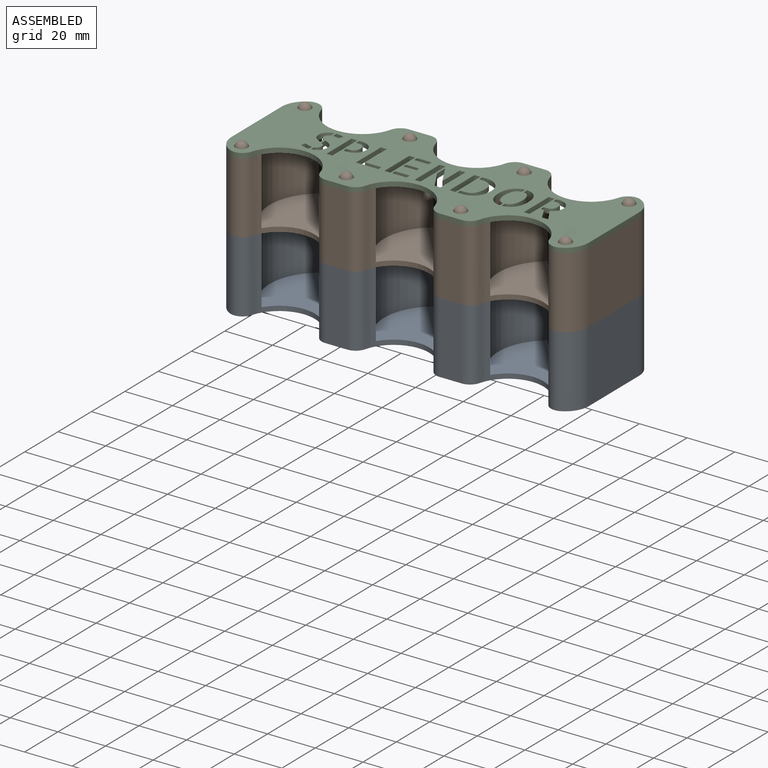
[diagram: assembled view]
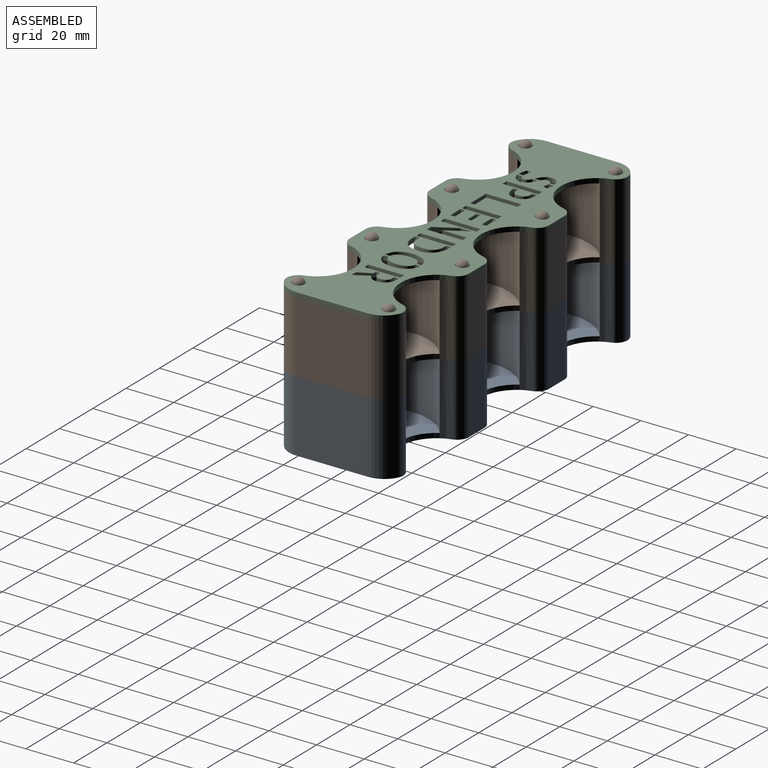
[diagram: assembled view, second angle]
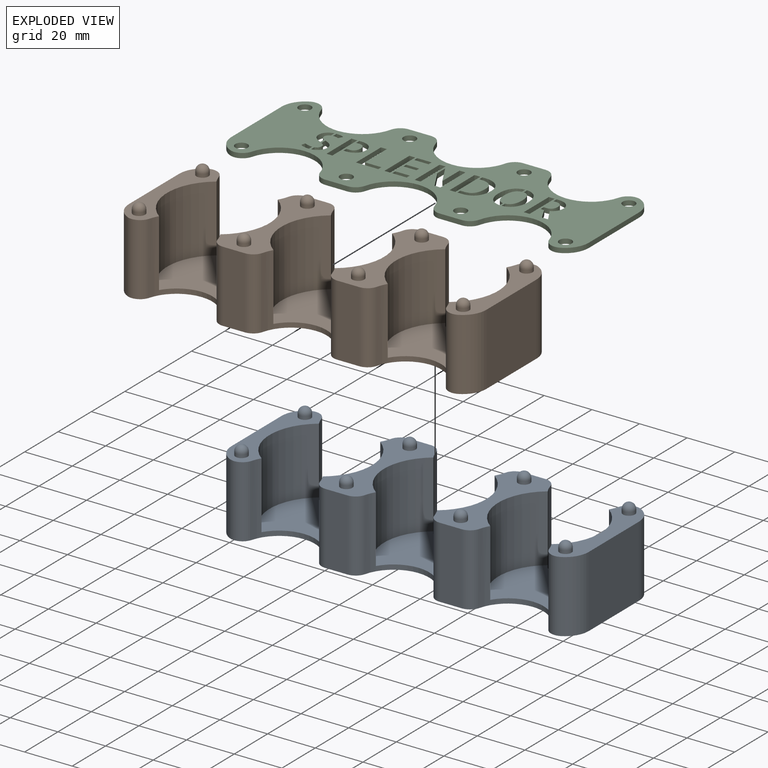
[diagram: exploded view]
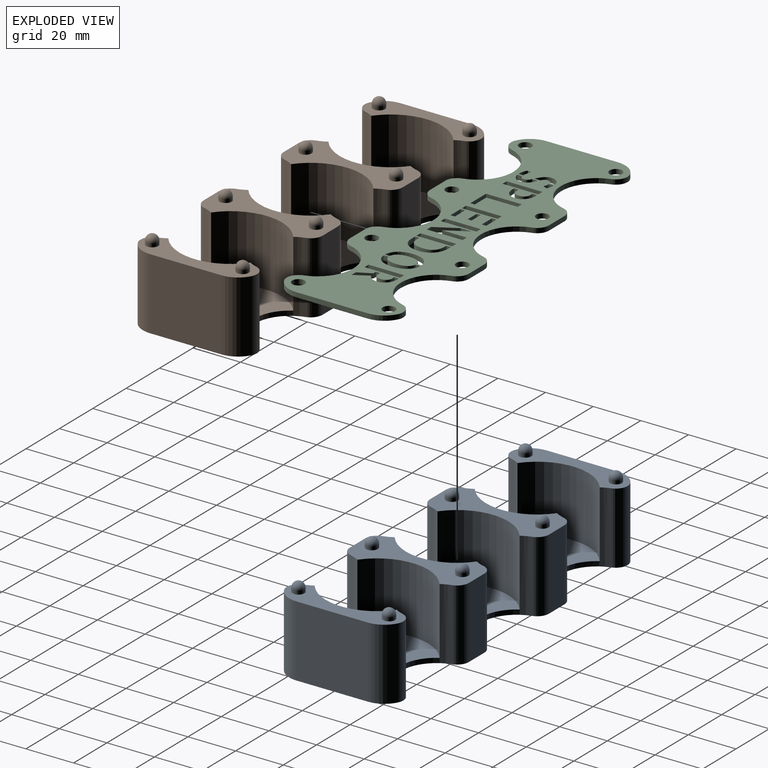
[diagram: exploded view, second angle]
ASSEMBLY  parts=3 mates=2
PART A: 74 faces, bbox 150x50x34 mm
  f0: plane 30x9.27mm, normal (0,1,0), area 278.1mm2, adj f6,f13,f32,f40
  f1: plane 30x9.27mm, normal (0,1,0), area 278.1mm2, adj f5,f13,f33,f36
  f2: plane 30x9.27mm, normal (0,-1,0), area 278.1mm2, adj f5,f13,f31,f34
  f3: plane 30x9.27mm, normal (0,-1,0), area 278.1mm2, adj f6,f13,f30,f39
  f4: plane 48.96x14.16mm, normal (0,0,1), area 383.3mm2, adj f8,f11,f22,f23,f26,f29,f35,f37
  f5: plane 50x22.32mm, normal (0,0,1), area 599.7mm2, adj f1,f2,f7,f16,f22,f23,f24,f25
  f6: plane 50x22.32mm, normal (0,0,1), area 599.7mm2, adj f0,f3,f9,f14,f20,f21,f24,f25
  f7: cylinder r=21.5mm len=34.49mm, axis (0,0,1), area 1120.7mm2, adj f5,f15,f24,f25
  f8: cylinder r=21.5mm len=34.49mm, axis (0,0,1), area 1120.7mm2, adj f4,f17,f22,f23
  f9: cylinder r=21.5mm len=34.49mm, axis (0,0,1), area 1120.7mm2, adj f6,f19,f20,f21
  f10: plane 30x30mm, normal (-1,0,0), area 900mm2, adj f12,f13,f27,f28
  f11: plane 30x30mm, normal (1,0,0), area 900mm2, adj f4,f13,f26,f29
  f12: plane 48.96x14.16mm, normal (0,0,1), area 383.3mm2, adj f10,f18,f20,f21,f27,f28,f38,f41
  f13: plane 150x50mm, normal (0,0,-1), area 5086.5mm2, adj f0,f1,f2,f3,f10,f11,f20,f21
  f14: cylinder r=21.5mm len=34.49mm, axis (0,0,1), area 1120.7mm2, adj f6,f15,f24,f25
  f15: plane 43x34.49mm, normal (0,0,1), area 1040.2mm2, adj f7,f14,f24,f25
  f16: cylinder r=21.5mm len=34.49mm, axis (0,0,1), area 1120.7mm2, adj f5,f17,f22,f23
  f17: plane 43x34.49mm, normal (0,0,1), area 1040.2mm2, adj f8,f16,f22,f23
  f18: cylinder r=21.5mm len=34.49mm, axis (0,0,1), area 1120.7mm2, adj f12,f19,f20,f21
  f19: plane 43x34.49mm, normal (0,0,1), area 1040.2mm2, adj f9,f18,f20,f21
  f20: cylinder r=15mm len=30mm, axis (0,0,1), area 311.1mm2, adj f6,f9,f12,f13,f18,f19,f40,f41
  f21: cylinder r=15mm len=30mm, axis (0,0,1), area 311.1mm2, adj f6,f9,f12,f13,f18,f19,f38,f39
  f22: cylinder r=15mm len=30mm, axis (0,0,1), area 311.1mm2, adj f4,f5,f8,f13,f16,f17,f36,f37
  f23: cylinder r=15mm len=30mm, axis (0,0,1), area 311.1mm2, adj f4,f5,f8,f13,f16,f17,f34,f35
  f24: cylinder r=15mm len=30mm, axis (0,0,1), area 323.2mm2, adj f5,f6,f7,f13,f14,f15,f32,f33
  f25: cylinder r=15mm len=30mm, axis (0,0,1), area 323.2mm2, adj f5,f6,f7,f13,f14,f15,f30,f31
  f26: cylinder r=10mm len=30mm, axis (0,0,-1), area 333mm2, adj f4,f11,f13,f35
  f27: cylinder r=10mm len=30mm, axis (0,0,-1), area 333mm2, adj f10,f12,f13,f41
  f28: cylinder r=10mm len=30mm, axis (0,0,1), area 333mm2, adj f10,f12,f13,f38
  f29: cylinder r=10mm len=30mm, axis (0,0,1), area 333mm2, adj f4,f11,f13,f37
  f30: cylinder r=5mm len=30mm, axis (0,0,1), area 197.7mm2, adj f3,f6,f13,f25
  f31: cylinder r=5mm len=30mm, axis (0,0,1), area 197.7mm2, adj f2,f5,f13,f25
  f32: cylinder r=5mm len=30mm, axis (0,0,1), area 197.7mm2, adj f0,f6,f13,f24
  f33: cylinder r=5mm len=30mm, axis (0,0,1), area 197.7mm2, adj f1,f5,f13,f24
  f34: cylinder r=5mm len=30mm, axis (0,0,1), area 197.7mm2, adj f2,f5,f13,f23
  f35: cylinder r=5mm len=30mm, axis (0,0,1), area 262.8mm2, adj f4,f13,f23,f26
  f36: cylinder r=5mm len=30mm, axis (0,0,1), area 197.7mm2, adj f1,f5,f13,f22
  f37: cylinder r=5mm len=30mm, axis (0,0,1), area 262.8mm2, adj f4,f13,f22,f29
  f38: cylinder r=5mm len=30mm, axis (0,0,-1), area 262.8mm2, adj f12,f13,f21,f28
  f39: cylinder r=5mm len=30mm, axis (0,0,1), area 197.7mm2, adj f3,f6,f13,f21
  f40: cylinder r=5mm len=30mm, axis (0,0,1), area 197.7mm2, adj f0,f6,f13,f20
  f41: cylinder r=5mm len=30mm, axis (0,0,-1), area 262.8mm2, adj f12,f13,f20,f27
  f42: cylinder r=2.5mm len=5mm, axis (0,0,-1), area 23.6mm2, adj f12,f57
  f43: cylinder r=2.5mm len=5mm, axis (0,0,-1), area 23.6mm2, adj f6,f51
  f44: cylinder r=2.5mm len=5mm, axis (0,0,-1), area 23.6mm2, adj f4,f56
  f45: cylinder r=2.5mm len=5mm, axis (0,0,-1), area 23.6mm2, adj f12,f55
  f46: cylinder r=2.5mm len=5mm, axis (0,0,-1), area 23.6mm2, adj f6,f50
  f47: cylinder r=2.5mm len=5mm, axis (0,0,-1), area 23.6mm2, adj f5,f54
  f48: cylinder r=2.5mm len=5mm, axis (0,0,-1), area 23.6mm2, adj f4,f53
  f49: cylinder r=2.5mm len=5mm, axis (0,0,-1), area 23.6mm2, adj f5,f52
  f50: sphere r=2.5mm, area 39.3mm2, adj f46
  f51: sphere r=2.5mm, area 39.3mm2, adj f43
  f52: sphere r=2.5mm, area 39.3mm2, adj f49
  f53: sphere r=2.5mm, area 39.3mm2, adj f48
  f54: sphere r=2.5mm, area 39.3mm2, adj f47
  f55: sphere r=2.5mm, area 39.3mm2, adj f45
  f56: sphere r=2.5mm, area 39.3mm2, adj f44
  f57: sphere r=2.5mm, area 39.3mm2, adj f42
  f58: cylinder r=2.5mm len=10mm, axis (0,0,-1), area 157.1mm2, adj f13,f59
  f59: plane 5x5mm, normal (0,0,-1), area 19.6mm2, adj f58
  f60: cylinder r=2.5mm len=10mm, axis (0,0,-1), area 157.1mm2, adj f13,f61
  f61: plane 5x5mm, normal (0,0,-1), area 19.6mm2, adj f60
  f62: cylinder r=2.5mm len=10mm, axis (0,0,-1), area 157.1mm2, adj f13,f63
  f63: plane 5x5mm, normal (0,0,-1), area 19.6mm2, adj f62
  f64: cylinder r=2.5mm len=10mm, axis (0,0,-1), area 157.1mm2, adj f13,f65
  f65: plane 5x5mm, normal (0,0,-1), area 19.6mm2, adj f64
  f66: cylinder r=2.5mm len=10mm, axis (0,0,-1), area 157.1mm2, adj f13,f67
  f67: plane 5x5mm, normal (0,0,-1), area 19.6mm2, adj f66
  f68: cylinder r=2.5mm len=10mm, axis (0,0,-1), area 157.1mm2, adj f13,f69
  f69: plane 5x5mm, normal (0,0,-1), area 19.6mm2, adj f68
  f70: cylinder r=2.5mm len=10mm, axis (0,0,-1), area 157.1mm2, adj f13,f71
  f71: plane 5x5mm, normal (0,0,-1), area 19.6mm2, adj f70
  f72: cylinder r=2.5mm len=10mm, axis (0,0,-1), area 157.1mm2, adj f13,f73
  f73: plane 5x5mm, normal (0,0,-1), area 19.6mm2, adj f72
PART B: same geometry as A
PART C: 239 faces, bbox 150x50x2 mm
  f0: plane 150x50mm, normal (0,0,-1), area 4487.9mm2, adj f2,f3,f4,f5,f6,f7,f8,f9
  f1: plane 150x50mm, normal (0,0,1), area 4487.9mm2, adj f2,f3,f4,f5,f6,f7,f8,f9
  f2: plane 9.27x2mm, normal (0,1,0), area 18.5mm2, adj f0,f1,f20,f28
  f3: plane 9.27x2mm, normal (0,1,0), area 18.5mm2, adj f0,f1,f21,f24
  f4: plane 9.27x2mm, normal (0,-1,0), area 18.5mm2, adj f0,f1,f19,f22
  f5: plane 9.27x2mm, normal (0,-1,0), area 18.5mm2, adj f0,f1,f18,f27
  f6: plane 30x2mm, normal (-1,0,0), area 60mm2, adj f0,f1,f15,f16
  f7: plane 30x2mm, normal (1,0,0), area 60mm2, adj f0,f1,f14,f17
  f8: cylinder r=15mm len=28.94mm, axis (0,0,1), area 78.3mm2, adj f0,f1,f28,f29
  f9: cylinder r=15mm len=28.94mm, axis (0,0,1), area 78.3mm2, adj f0,f1,f26,f27
  f10: cylinder r=15mm len=28.94mm, axis (0,0,1), area 78.3mm2, adj f0,f1,f24,f25
  f11: cylinder r=15mm len=28.94mm, axis (0,0,1), area 78.3mm2, adj f0,f1,f22,f23
  f12: cylinder r=15mm len=29.05mm, axis (0,0,1), area 79.1mm2, adj f0,f1,f20,f21
  f13: cylinder r=15mm len=29.05mm, axis (0,0,1), area 79.1mm2, adj f0,f1,f18,f19
  f14: cylinder r=10mm len=8.96mm, axis (0,0,-1), area 22.2mm2, adj f0,f1,f7,f23
  f15: cylinder r=10mm len=8.96mm, axis (0,0,-1), area 22.2mm2, adj f0,f1,f6,f29
  f16: cylinder r=10mm len=8.96mm, axis (0,0,1), area 22.2mm2, adj f0,f1,f6,f26
  f17: cylinder r=10mm len=8.96mm, axis (0,0,1), area 22.2mm2, adj f0,f1,f7,f25
  f18: cylinder r=5mm len=4.84mm, axis (0,0,1), area 13.2mm2, adj f0,f1,f5,f13
  f19: cylinder r=5mm len=4.84mm, axis (0,0,1), area 13.2mm2, adj f0,f1,f4,f13
  f20: cylinder r=5mm len=4.84mm, axis (0,0,1), area 13.2mm2, adj f0,f1,f2,f12
  f21: cylinder r=5mm len=4.84mm, axis (0,0,1), area 13.2mm2, adj f0,f1,f3,f12
  f22: cylinder r=5mm len=4.84mm, axis (0,0,1), area 13.2mm2, adj f0,f1,f4,f11
  f23: cylinder r=5mm len=7.03mm, axis (0,0,1), area 17.5mm2, adj f0,f1,f11,f14
  f24: cylinder r=5mm len=4.84mm, axis (0,0,1), area 13.2mm2, adj f0,f1,f3,f10
  f25: cylinder r=5mm len=7.03mm, axis (0,0,1), area 17.5mm2, adj f0,f1,f10,f17
  f26: cylinder r=5mm len=7.03mm, axis (0,0,-1), area 17.5mm2, adj f0,f1,f9,f16
  f27: cylinder r=5mm len=4.84mm, axis (0,0,1), area 13.2mm2, adj f0,f1,f5,f9
  f28: cylinder r=5mm len=4.84mm, axis (0,0,1), area 13.2mm2, adj f0,f1,f2,f8
  f29: cylinder r=5mm len=7.03mm, axis (0,0,-1), area 17.5mm2, adj f0,f1,f8,f15
  f30: cylinder r=2.6mm len=5.2mm, axis (0,0,-1), area 32.7mm2, adj f0,f1
  f31: cylinder r=2.6mm len=5.2mm, axis (0,0,-1), area 32.7mm2, adj f0,f1
  f32: cylinder r=2.6mm len=5.2mm, axis (0,0,-1), area 32.7mm2, adj f0,f1
  f33: cylinder r=2.6mm len=5.2mm, axis (0,0,-1), area 32.7mm2, adj f0,f1
  f34: cylinder r=2.6mm len=5.2mm, axis (0,0,-1), area 32.7mm2, adj f0,f1
  f35: cylinder r=2.6mm len=5.2mm, axis (0,0,-1), area 32.7mm2, adj f0,f1
  f36: cylinder r=2.6mm len=5.2mm, axis (0,0,-1), area 32.7mm2, adj f0,f1
  f37: cylinder r=2.6mm len=5.2mm, axis (0,0,-1), area 32.7mm2, adj f0,f1
  f38: extruded ~2x0.2mm, area 0.5mm2, adj f0,f1,f39,f48
  f39: extruded ~2x0.46mm, area 1mm2, adj f0,f1,f38,f40
  f40: extruded ~2x0.59mm, area 1.3mm2, adj f0,f1,f39,f41
  f41: extruded ~2x0.58mm, area 1.3mm2, adj f0,f1,f40,f42
  f42: extruded ~2x1.5mm, area 3.2mm2, adj f0,f1,f41,f43
  f43: extruded ~2x1.82mm, area 3.7mm2, adj f0,f1,f42,f44
  f44: plane 2.05x2mm, normal (1,0,0), area 4.1mm2, adj f0,f1,f43,f45
  f45: extruded ~2x1.04mm, area 2.1mm2, adj f0,f1,f44,f46
  f46: extruded ~2x0.67mm, area 1.4mm2, adj f0,f1,f45,f47
  f47: extruded ~2x0.41mm, area 0.9mm2, adj f0,f1,f46,f48
  f48: extruded ~2x0.24mm, area 0.6mm2, adj f0,f1,f38,f47
  f49: plane 2.02x2mm, normal (1,0,0), area 4mm2, adj f0,f1,f50,f66
  f50: extruded ~2x1.28mm, area 2.7mm2, adj f0,f1,f49,f51
  f51: extruded ~2x1.07mm, area 3mm2, adj f0,f1,f50,f52
  f52: extruded ~2x1.71mm, area 3.7mm2, adj f0,f1,f51,f53
  f53: extruded ~2.47x2mm, area 5mm2, adj f0,f1,f52,f54
  f54: extruded ~2.47x2mm, area 5mm2, adj f0,f1,f53,f55
  f55: extruded ~2x1.71mm, area 3.7mm2, adj f0,f1,f54,f56
  f56: extruded ~2x1.06mm, area 3mm2, adj f0,f1,f55,f57
  f57: extruded ~2x1.3mm, area 2.8mm2, adj f0,f1,f56,f58
  f58: plane 2.02x2mm, normal (1,0,0), area 4mm2, adj f0,f1,f57,f59
  f59: extruded ~2.32x2mm, area 4.8mm2, adj f0,f1,f58,f60
  f60: extruded ~2x1.84mm, area 4.8mm2, adj f0,f1,f59,f61
  f61: extruded ~2.37x2mm, area 5.4mm2, adj f0,f1,f60,f62
  f62: extruded ~3.21x2mm, area 6.5mm2, adj f0,f1,f61,f63
  f63: extruded ~3.2x2mm, area 6.5mm2, adj f0,f1,f62,f64
  f64: extruded ~2.36x2mm, area 5.4mm2, adj f0,f1,f63,f65
  f65: extruded ~2x1.85mm, area 4.8mm2, adj f0,f1,f64,f66
  f66: extruded ~2.31x2mm, area 4.8mm2, adj f0,f1,f49,f65
  f67: extruded ~3.21x2mm, area 6.5mm2, adj f0,f1,f68,f84
  f68: extruded ~2.37x2mm, area 5.4mm2, adj f0,f1,f67,f69
  f69: extruded ~2x1.86mm, area 4.8mm2, adj f0,f1,f68,f70
  f70: extruded ~2.32x2mm, area 4.8mm2, adj f0,f1,f69,f71
  f71: plane 2.02x2mm, normal (-1,0,0), area 4mm2, adj f0,f1,f70,f72
  f72: extruded ~2x1.28mm, area 2.7mm2, adj f0,f1,f71,f73
  f73: extruded ~2x1.07mm, area 3mm2, adj f0,f1,f72,f74
  f74: extruded ~2x1.72mm, area 3.7mm2, adj f0,f1,f73,f75
  f75: extruded ~2.47x2mm, area 5mm2, adj f0,f1,f74,f76
  f76: extruded ~2.46x2mm, area 5mm2, adj f0,f1,f75,f77
  f77: extruded ~2x1.71mm, area 3.7mm2, adj f0,f1,f76,f78
  f78: extruded ~2x1.06mm, area 3mm2, adj f0,f1,f77,f79
  f79: extruded ~2x1.3mm, area 2.8mm2, adj f0,f1,f78,f80
  f80: plane 2.03x2mm, normal (-1,0,0), area 4.1mm2, adj f0,f1,f79,f81
  f81: extruded ~2.33x2mm, area 4.8mm2, adj f0,f1,f80,f82
  f82: extruded ~2x1.85mm, area 4.8mm2, adj f0,f1,f81,f83
  f83: extruded ~2.36x2mm, area 5.3mm2, adj f0,f1,f82,f84
  f84: extruded ~3.2x2mm, area 6.5mm2, adj f0,f1,f67,f83
  f85: plane 2x1.24mm, normal (0,-1,0), area 2.5mm2, adj f0,f1,f86,f106
  f86: plane 2x1.85mm, normal (1,0,0), area 3.7mm2, adj f0,f1,f85,f87
  f87: plane 2x0.59mm, normal (0,1,0), area 1.2mm2, adj f0,f1,f86,f88
  f88: extruded ~2.85x2mm, area 5.8mm2, adj f0,f1,f87,f89
  f89: extruded ~2x1.74mm, area 4.3mm2, adj f0,f1,f88,f90
  f90: extruded ~2x1.66mm, area 3.8mm2, adj f0,f1,f89,f91
  f91: extruded ~2x1.85mm, area 3.7mm2, adj f0,f1,f90,f92
  f92: extruded ~4.6x2mm, area 9.6mm2, adj f0,f1,f91,f93
  f93: extruded ~3.58x2mm, area 8.2mm2, adj f0,f1,f92,f94
  f94: plane 2x1.59mm, normal (0,-1,0), area 3.2mm2, adj f0,f1,f93,f95
  f95: plane 2x1.79mm, normal (1,0,0), area 3.6mm2, adj f0,f1,f94,f96
  f96: plane 2.4x2mm, normal (0,1,0), area 4.8mm2, adj f0,f1,f95,f97
  f97: extruded ~2x0.87mm, area 1.8mm2, adj f0,f1,f96,f98
  f98: extruded ~2x1.3mm, area 2.7mm2, adj f0,f1,f97,f99
  f99: extruded ~2x1.47mm, area 3.3mm2, adj f0,f1,f98,f100
  f100: extruded ~2x1.39mm, area 3.9mm2, adj f0,f1,f99,f101
  f101: extruded ~2.2x2mm, area 4.9mm2, adj f0,f1,f100,f102
  f102: extruded ~3.16x2mm, area 6.4mm2, adj f0,f1,f101,f103
  f103: extruded ~2.62x2mm, area 5.3mm2, adj f0,f1,f102,f104
  f104: extruded ~2.27x2mm, area 5.4mm2, adj f0,f1,f103,f105
  f105: extruded ~2.38x2mm, area 5.8mm2, adj f0,f1,f104,f106
  f106: extruded ~3.33x2mm, area 6.8mm2, adj f0,f1,f85,f105
  f107: plane 14.99x2mm, normal (1,0,0), area 30mm2, adj f0,f1,f108,f110
  f108: plane 2.44x2mm, normal (0,1,0), area 4.9mm2, adj f0,f1,f107,f109
  f109: plane 14.99x2mm, normal (-1,0,0), area 30mm2, adj f0,f1,f108,f110
  f110: plane 2.44x2mm, normal (0,-1,0), area 4.9mm2, adj f0,f1,f107,f109
  f111: plane 2.48x2mm, normal (0,1,0), area 5mm2, adj f0,f1,f112,f114
  f112: plane 14.99x2mm, normal (-1,0,0), area 30mm2, adj f0,f1,f111,f113
  f113: plane 2.48x2mm, normal (0,-1,0), area 5mm2, adj f0,f1,f112,f114
  f114: plane 14.99x2mm, normal (1,0,0), area 30mm2, adj f0,f1,f111,f113
  f115: plane 10.34x2mm, normal (1,0,0), area 20.7mm2, adj f0,f1,f116,f121
  f116: plane 8.89x5.05mm, normal (-0.87,-0.49,0), area 20.4mm2, adj f0,f1,f115,f117
  f117: plane 4.68x2mm, normal (1,0,0), area 9.4mm2, adj f0,f1,f116,f118
  f118: plane 8.87x5.05mm, normal (0.87,0.49,0), area 20.4mm2, adj f0,f1,f117,f119
  f119: plane 2.48x2mm, normal (0,1,0), area 5mm2, adj f0,f1,f118,f120
  f120: plane 14.99x2mm, normal (-1,0,0), area 30mm2, adj f0,f1,f119,f121
  f121: plane 2.48x2mm, normal (0,-1,0), area 5mm2, adj f0,f1,f115,f120
  f122: plane 6.06x2mm, normal (0,-1,0), area 12.1mm2, adj f0,f1,f123,f125
  f123: plane 2x1.85mm, normal (1,0,0), area 3.7mm2, adj f0,f1,f122,f124
  f124: plane 6.06x2mm, normal (0,1,0), area 12.1mm2, adj f0,f1,f123,f125
  f125: plane 2x1.85mm, normal (-1,0,0), area 3.7mm2, adj f0,f1,f122,f124
  f126: plane 2x1.85mm, normal (1,0,0), area 3.7mm2, adj f0,f1,f127,f129
  f127: plane 6.06x2mm, normal (0,1,0), area 12.1mm2, adj f0,f1,f126,f128
  f128: plane 2x1.85mm, normal (-1,0,0), area 3.7mm2, adj f0,f1,f127,f129
  f129: plane 6.06x2mm, normal (0,-1,0), area 12.1mm2, adj f0,f1,f126,f128
  f130: plane 2x1.67mm, normal (-1,0,0), area 3.3mm2, adj f0,f1,f131,f133
  f131: plane 5.43x2mm, normal (0,-1,0), area 10.9mm2, adj f0,f1,f130,f132
  f132: plane 2x1.67mm, normal (1,0,0), area 3.3mm2, adj f0,f1,f131,f133
  f133: plane 5.43x2mm, normal (0,1,0), area 10.9mm2, adj f0,f1,f130,f132
  f134: plane 14.99x2mm, normal (1,0,0), area 30mm2, adj f0,f1,f135,f137
  f135: plane 2.48x2mm, normal (0,1,0), area 5mm2, adj f0,f1,f134,f136
  f136: plane 14.99x2mm, normal (-1,0,0), area 30mm2, adj f0,f1,f135,f137
  f137: plane 2.48x2mm, normal (0,-1,0), area 5mm2, adj f0,f1,f134,f136
  f138: plane 2.48x2mm, normal (0,-1,0), area 5mm2, adj f0,f1,f139,f143
  f139: plane 14.99x2mm, normal (1,0,0), area 30mm2, adj f0,f1,f138,f140
  f140: plane 9.38x2mm, normal (0,1,0), area 18.8mm2, adj f0,f1,f139,f141
  f141: plane 2x1.85mm, normal (-1,0,0), area 3.7mm2, adj f0,f1,f140,f142
  f142: plane 6.9x2mm, normal (0,-1,0), area 13.8mm2, adj f0,f1,f141,f143
  f143: plane 13.14x2mm, normal (-1,0,0), area 26.3mm2, adj f0,f1,f138,f142
  f144: plane 2x1.04mm, normal (0,-1,0), area 2.1mm2, adj f0,f1,f145,f165
  f145: plane 2x1.85mm, normal (1,0,0), area 3.7mm2, adj f0,f1,f144,f146
  f146: plane 2x1mm, normal (0,1,0), area 2mm2, adj f0,f1,f145,f147
  f147: extruded ~2x1.51mm, area 3.1mm2, adj f0,f1,f146,f148
  f148: extruded ~2x0.89mm, area 2.3mm2, adj f0,f1,f147,f149
  f149: extruded ~2x0.91mm, area 2mm2, adj f0,f1,f148,f150
  f150: extruded ~2x0.85mm, area 1.7mm2, adj f0,f1,f149,f151
  f151: extruded ~2x1.54mm, area 3.1mm2, adj f0,f1,f150,f152
  f152: extruded ~2x0.97mm, area 2.3mm2, adj f0,f1,f151,f153
  f153: extruded ~2x0.8mm, area 1.9mm2, adj f0,f1,f152,f154
  f154: extruded ~2x0.89mm, area 1.8mm2, adj f0,f1,f153,f155
  f155: plane 2x1.4mm, normal (0,-1,0), area 2.8mm2, adj f0,f1,f154,f156
  f156: plane 2x1.79mm, normal (1,0,0), area 3.6mm2, adj f0,f1,f155,f157
  f157: plane 2x0.98mm, normal (0,1,0), area 2mm2, adj f0,f1,f156,f158
  f158: extruded ~2.16x2mm, area 4.4mm2, adj f0,f1,f157,f159
  f159: extruded ~2x1.67mm, area 3.9mm2, adj f0,f1,f158,f160
  f160: extruded ~2x1.56mm, area 3.8mm2, adj f0,f1,f159,f161
  f161: extruded ~2.06x2mm, area 4.2mm2, adj f0,f1,f160,f162
  f162: extruded ~2x1.95mm, area 4mm2, adj f0,f1,f161,f163
  f163: extruded ~2x1.47mm, area 3.8mm2, adj f0,f1,f162,f164
  f164: extruded ~2x1.68mm, area 3.8mm2, adj f0,f1,f163,f165
  f165: extruded ~2x1.89mm, area 3.9mm2, adj f0,f1,f144,f164
  f166: plane 14.99x2mm, normal (1,0,0), area 30mm2, adj f0,f1,f167,f169
  f167: plane 2.44x2mm, normal (0,1,0), area 4.9mm2, adj f0,f1,f166,f168
  f168: plane 14.99x2mm, normal (-1,0,0), area 30mm2, adj f0,f1,f167,f169
  f169: plane 2.44x2mm, normal (0,-1,0), area 4.9mm2, adj f0,f1,f166,f168
  f170: plane 2.38x2mm, normal (1,0,0), area 4.8mm2, adj f0,f1,f171,f182
  f171: extruded ~2x1.2mm, area 3mm2, adj f0,f1,f170,f172
  f172: extruded ~2x1.18mm, area 2.6mm2, adj f0,f1,f171,f173
  f173: extruded ~2.22x2mm, area 6.1mm2, adj f0,f1,f172,f174
  f174: plane 2x1.95mm, normal (1,0,0), area 3.9mm2, adj f0,f1,f173,f175
  f175: extruded ~2x1.67mm, area 3.5mm2, adj f0,f1,f174,f176
  f176: extruded ~2x1.23mm, area 3.1mm2, adj f0,f1,f175,f177
  f177: extruded ~2x1.25mm, area 3mm2, adj f0,f1,f176,f178
  f178: extruded ~2x1.42mm, area 2.9mm2, adj f0,f1,f177,f179
  f179: extruded ~2x1.77mm, area 3.6mm2, adj f0,f1,f178,f180
  f180: extruded ~2x1.21mm, area 3.1mm2, adj f0,f1,f179,f181
  f181: extruded ~2x1.27mm, area 3.1mm2, adj f0,f1,f180,f182
  f182: extruded ~2x1.37mm, area 3mm2, adj f0,f1,f170,f181
  f183: plane 2x1.75mm, normal (0.97,-0.24,0), area 3.6mm2, adj f0,f1,f184,f194
  f184: extruded ~2x0.83mm, area 2mm2, adj f0,f1,f183,f185
  f185: extruded ~2x1.01mm, area 2.1mm2, adj f0,f1,f184,f186
  f186: extruded ~2x1.05mm, area 2.1mm2, adj f0,f1,f185,f187
  f187: extruded ~2x1.01mm, area 2mm2, adj f0,f1,f186,f188
  f188: plane 2x0.04mm, normal (0,1,0), area 0.1mm2, adj f0,f1,f187,f189
  f189: plane 2x1.93mm, normal (-1,0,0), area 3.9mm2, adj f0,f1,f188,f190
  f190: plane 2x0.06mm, normal (0,-1,0), area 0.1mm2, adj f0,f1,f189,f191
  f191: extruded ~2x0.88mm, area 1.8mm2, adj f0,f1,f190,f192
  f192: extruded ~2x0.94mm, area 1.9mm2, adj f0,f1,f191,f193
  f193: extruded ~2x0.91mm, area 1.9mm2, adj f0,f1,f192,f194
  f194: extruded ~2x0.72mm, area 1.6mm2, adj f0,f1,f183,f193
  f195: extruded ~2x1.61mm, area 3.3mm2, adj f0,f1,f196,f208
  f196: extruded ~2x1.18mm, area 3mm2, adj f0,f1,f195,f197
  f197: extruded ~2x1.22mm, area 3mm2, adj f0,f1,f196,f198
  f198: extruded ~2x1.34mm, area 3mm2, adj f0,f1,f197,f199
  f199: plane 2.32x2mm, normal (-1,0,0), area 4.6mm2, adj f0,f1,f198,f200
  f200: extruded ~2x1.08mm, area 2.8mm2, adj f0,f1,f199,f201
  f201: extruded ~2x1.28mm, area 2.8mm2, adj f0,f1,f200,f202
  f202: extruded ~2x1.13mm, area 2.5mm2, adj f0,f1,f201,f203
  f203: extruded ~2x1.08mm, area 2.7mm2, adj f0,f1,f202,f204
  f204: plane 2.14x2mm, normal (-1,0,0), area 4.3mm2, adj f0,f1,f203,f205
  f205: extruded ~2x1.48mm, area 3.1mm2, adj f0,f1,f204,f206
  f206: extruded ~2x1.22mm, area 3mm2, adj f0,f1,f205,f207
  f207: extruded ~2x1.25mm, area 3mm2, adj f0,f1,f206,f208
  f208: extruded ~2x1.61mm, area 3.3mm2, adj f0,f1,f195,f207
  f209: plane 14.99x2mm, normal (1,0,0), area 30mm2, adj f0,f1,f210,f212
  f210: plane 2.44x2mm, normal (0,1,0), area 4.9mm2, adj f0,f1,f209,f211
  f211: plane 14.99x2mm, normal (-1,0,0), area 30mm2, adj f0,f1,f210,f212
  f212: plane 2.44x2mm, normal (0,-1,0), area 4.9mm2, adj f0,f1,f209,f211
  f213: plane 5.9x3.42mm, normal (-0.87,-0.5,0), area 13.6mm2, adj f0,f1,f214,f238
  f214: extruded ~2.03x2mm, area 5.4mm2, adj f0,f1,f213,f215
  f215: extruded ~2.77x2mm, area 5.8mm2, adj f0,f1,f214,f216
  f216: extruded ~2x1.95mm, area 4mm2, adj f0,f1,f215,f217
  f217: extruded ~2x1.47mm, area 3.8mm2, adj f0,f1,f216,f218
  f218: extruded ~2x1.68mm, area 3.8mm2, adj f0,f1,f217,f219
  f219: extruded ~2x1.89mm, area 3.8mm2, adj f0,f1,f218,f220
  f220: plane 2x1.04mm, normal (0,-1,0), area 2.1mm2, adj f0,f1,f219,f221
  f221: plane 2x1.85mm, normal (1,0,0), area 3.7mm2, adj f0,f1,f220,f222
  f222: plane 2x1mm, normal (0,1,0), area 2mm2, adj f0,f1,f221,f223
  f223: extruded ~2x1.51mm, area 3.1mm2, adj f0,f1,f222,f224
  f224: extruded ~2x0.88mm, area 2.3mm2, adj f0,f1,f223,f225
  f225: extruded ~2x0.91mm, area 2mm2, adj f0,f1,f224,f226
  f226: extruded ~2x0.85mm, area 1.7mm2, adj f0,f1,f225,f227
  f227: extruded ~2x1.54mm, area 3.1mm2, adj f0,f1,f226,f228
  f228: extruded ~2x0.97mm, area 2.3mm2, adj f0,f1,f227,f229
  f229: extruded ~2x0.81mm, area 1.9mm2, adj f0,f1,f228,f230
  f230: extruded ~2x0.89mm, area 1.8mm2, adj f0,f1,f229,f231
  f231: plane 2x1.38mm, normal (0,-1,0), area 2.8mm2, adj f0,f1,f230,f232
  f232: plane 2x1.79mm, normal (1,0,0), area 3.6mm2, adj f0,f1,f231,f233
  f233: plane 2x0.72mm, normal (0,1,0), area 1.4mm2, adj f0,f1,f232,f234
  f234: plane 2x0.42mm, normal (0,1,0), area 0.8mm2, adj f0,f1,f233,f235
  f235: extruded ~2x0.21mm, area 0.4mm2, adj f0,f1,f234,f236
  f236: extruded ~2x0.13mm, area 0.3mm2, adj f0,f1,f235,f237
  f237: plane 5.43x2.83mm, normal (0.89,0.46,0), area 12.3mm2, adj f0,f1,f236,f238
  f238: plane 2.58x2mm, normal (0,1,0), area 5.2mm2, adj f0,f1,f213,f237
PLACE A t=(-24.37,-22.58,-12.77)mm fixed
PLACE B t=(-24.37,-22.58,17.23)mm
PLACE C t=(-24.37,-22.58,47.23)mm
MATE fastened B.f44 <-> C.f31  axis (0,0,1) through (118.63,21.42,47.23)mm
MATE fastened B.f44 <-> A.f44  axis (0,0,-1) through (118.63,21.42,17.23)mm
